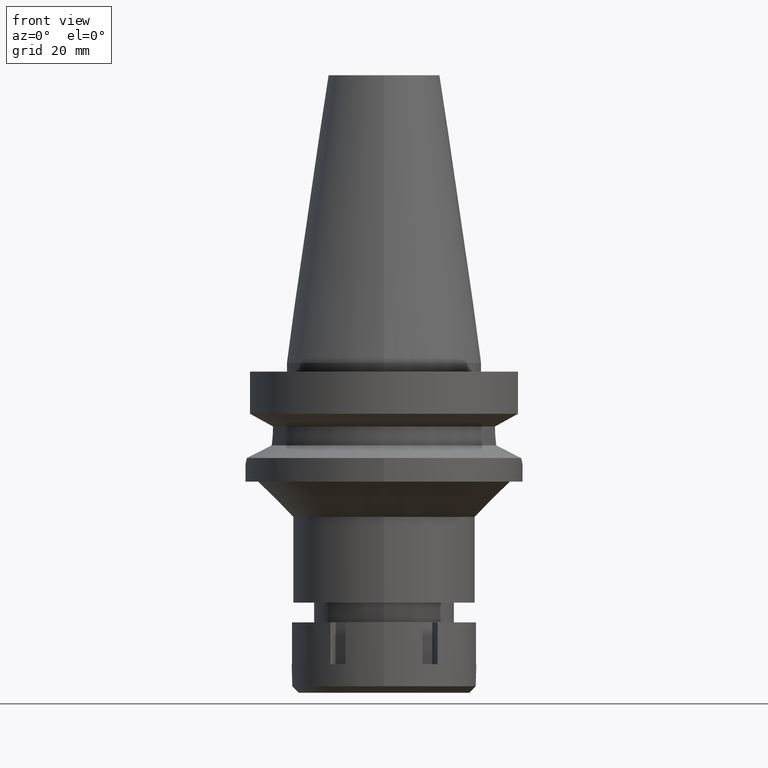
[diagram: clean part render]
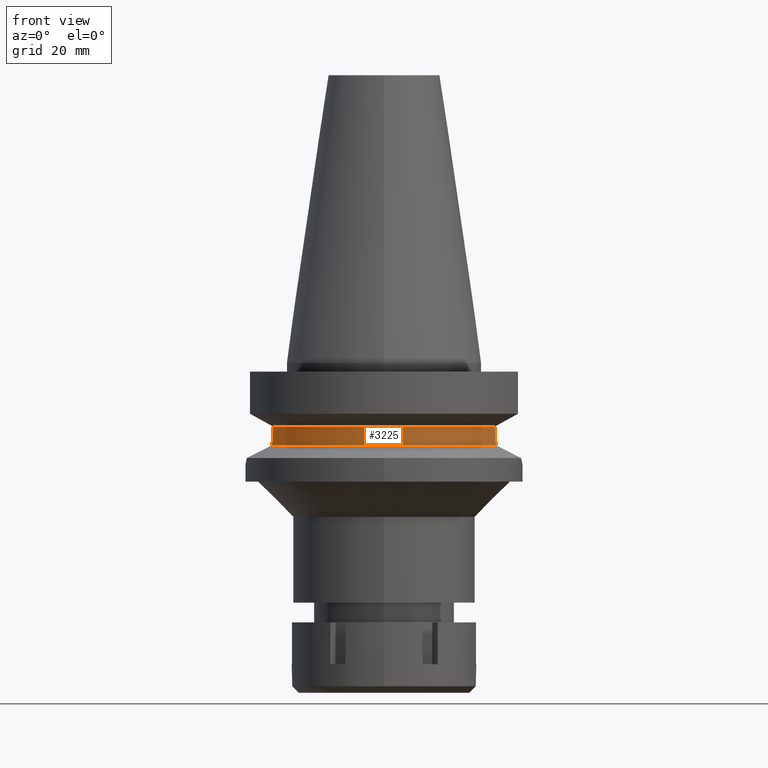
[diagram: same view with one face highlighted and labeled with its STEP entity id]
A machine part, front view. The second image highlights one B-rep face of the part: STEP entity #3225.
In plain terms, the highlighted cylindrical surface (partial cylindrical patch) has radius 26.5 mm, axis along (0, 0, -1).
Its self-contained STEP definition (entity closure, byte-faithful):
#19 = VERTEX_POINT ( 'NONE', #2022 ) ;
#30 = CARTESIAN_POINT ( 'NONE',  ( 25.28049748601338109, -7.946994850450307624, -16.24429618583970480 ) ) ;
#39 = CARTESIAN_POINT ( 'NONE',  ( -25.37572056917267460, -7.637749951107052127, -17.49806859187443564 ) ) ;
#62 = CARTESIAN_POINT ( 'NONE',  ( -25.32549268443488444, -7.802113524032651348, -16.93239579624749425 ) ) ;
#66 = EDGE_CURVE ( 'NONE', #2370, #299, #505, .T. ) ;
#105 = CARTESIAN_POINT ( 'NONE',  ( 25.31205300124014812, -7.845639649925911563, -16.75318914303528928 ) ) ;
#124 = CARTESIAN_POINT ( 'NONE',  ( 25.31651564365630946, -7.831204104243174591, -16.81418330715626652 ) ) ;
#125 = EDGE_CURVE ( 'NONE', #1655, #19, #2956, .T. ) ;
#183 = DIRECTION ( 'NONE',  ( 0.9527442516822307583, -0.3037735849057093818, 0.0000000000000000000 ) ) ;
#236 = DIRECTION ( 'NONE',  ( 1.005982706971015418E-06, 3.155128841044053748E-06, -0.9999999999945164975 ) ) ;
#299 = VERTEX_POINT ( 'NONE', #3288 ) ;
#319 = CARTESIAN_POINT ( 'NONE',  ( -25.24772266958000344, -8.050000000000000711, -14.94999999999999929 ) ) ;
#505 = B_SPLINE_CURVE_WITH_KNOTS ( 'NONE', 3,
 ( #1488, #2557, #931, #865, #39, #2212, #3318, #2770, #3044, #62, #634, #1688, #1718, #319 ),
 .UNSPECIFIED., .F., .F.,
 ( 4, 2, 2, 1, 1, 2, 2, 4 ),
 ( 0.0000000000000000000, 0.2500000000000173750, 0.3750000000000248135, 0.4375000000000286993, 0.4687500000000293099, 0.4843750000000282552, 0.5000000000000272005, 1.000000000000000000 ),
 .UNSPECIFIED. ) ;
#573 = FACE_OUTER_BOUND ( 'NONE', #1580, .T. ) ;
#594 = AXIS2_PLACEMENT_3D ( 'NONE', #2541, #2613, #183 ) ;
#634 = CARTESIAN_POINT ( 'NONE',  ( -25.32418278270155554, -7.806361859900751377, -16.91561764571308757 ) ) ;
#665 = CARTESIAN_POINT ( 'NONE',  ( 25.31953951064867780, -7.821415171330479588, -16.85483643462544734 ) ) ;
#672 = EDGE_CURVE ( 'NONE', #1655, #2153, #1392, .T. ) ;
#685 = CARTESIAN_POINT ( 'NONE',  ( 25.24772216885000020, -8.050001570481001067, -14.45224499875000035 ) ) ;
#695 = CARTESIAN_POINT ( 'NONE',  ( 25.53175183775000079, -7.097862220092999941, -18.74774300138999905 ) ) ;
#726 = ORIENTED_EDGE ( 'NONE', *, *, #672, .T. ) ;
#743 = DIRECTION ( 'NONE',  ( -0.9634623335000935818, -0.2678438573619981722, 0.0000000000000000000 ) ) ;
#779 = AXIS2_PLACEMENT_3D ( 'NONE', #2020, #1007, #743 ) ;
#832 = CARTESIAN_POINT ( 'NONE',  ( 25.24772266958000344, -8.050000000000000711, -14.94999999999999929 ) ) ;
#865 = CARTESIAN_POINT ( 'NONE',  ( -25.39163787691478191, -7.584845155549783335, -17.65187522139927623 ) ) ;
#910 = CARTESIAN_POINT ( 'NONE',  ( 25.30215227544257317, -7.877591542034611649, -16.61078271334942613 ) ) ;
#931 = CARTESIAN_POINT ( 'NONE',  ( -25.44392024329485480, -7.408267248949534256, -18.11703320962315544 ) ) ;
#1007 = DIRECTION ( 'NONE',  ( 0.0000000000000000000, 0.0000000000000000000, 1.000000000000000000 ) ) ;
#1110 = DIRECTION ( 'NONE',  ( 0.0000000000000000000, 0.0000000000000000000, -1.000000000000000000 ) ) ;
#1181 = EDGE_CURVE ( 'NONE', #19, #1637, #2752, .T. ) ;
#1361 = CYLINDRICAL_SURFACE ( 'NONE', #1948, 26.50000000000000000 ) ;
#1372 = ORIENTED_EDGE ( 'NONE', *, *, #1603, .F. ) ;
#1392 = CIRCLE ( 'NONE', #594, 26.50000000000000711 ) ;
#1488 = CARTESIAN_POINT ( 'NONE',  ( -25.53175183775000079, -7.097862220092999941, -18.74774300138999905 ) ) ;
#1580 = EDGE_LOOP ( 'NONE', ( #3088, #2897, #2991, #2412, #726, #1372 ) ) ;
#1603 = EDGE_CURVE ( 'NONE', #299, #2153, #2760, .T. ) ;
#1637 = VERTEX_POINT ( 'NONE', #2501 ) ;
#1642 = CARTESIAN_POINT ( 'NONE',  ( 25.24772266958000344, -8.050000000000000711, -14.45225699861000024 ) ) ;
#1655 = VERTEX_POINT ( 'NONE', #1642 ) ;
#1672 = DIRECTION ( 'NONE',  ( -2.949280787093910701E-06, 9.250021163603722903E-06, 0.9999999999528693673 ) ) ;
#1673 = CARTESIAN_POINT ( 'NONE',  ( 0.0000000000000000000, 2.106637423893000012E-14, 72.01999999999999602 ) ) ;
#1688 = CARTESIAN_POINT ( 'NONE',  ( -25.27268923712988880, -7.973297925131175745, -16.24528153449228896 ) ) ;
#1713 = CARTESIAN_POINT ( 'NONE',  ( 25.32121330090097544, -7.815992399058099949, -16.87694767647812455 ) ) ;
#1718 = CARTESIAN_POINT ( 'NONE',  ( -25.24772266958000344, -8.049999999999979394, -15.58995917009923993 ) ) ;
#1794 = CARTESIAN_POINT ( 'NONE',  ( 25.25396549175778560, -8.030898715995981263, -15.59375012089180323 ) ) ;
#1902 = VECTOR ( 'NONE', #1672, 1000.000000000000114 ) ;
#1916 = CARTESIAN_POINT ( 'NONE',  ( 25.24772266957999989, -8.050000000000000711, -15.26998665875503747 ) ) ;
#1948 = AXIS2_PLACEMENT_3D ( 'NONE', #1673, #1110, #2242 ) ;
#2020 = CARTESIAN_POINT ( 'NONE',  ( 0.0000000000000000000, 0.0000000000000000000, -18.74774300138999905 ) ) ;
#2022 = CARTESIAN_POINT ( 'NONE',  ( 25.24772266958000344, -8.050000000000000711, -14.94999999999999929 ) ) ;
#2033 = CARTESIAN_POINT ( 'NONE',  ( -25.53175183775000079, -7.097862220092999941, -18.74774300138999905 ) ) ;
#2042 = CARTESIAN_POINT ( 'NONE',  ( 25.29454383591340516, -7.902025199032715719, -16.48862119974110385 ) ) ;
#2153 = VERTEX_POINT ( 'NONE', #2231 ) ;
#2212 = CARTESIAN_POINT ( 'NONE',  ( -25.35410982913639444, -7.708872424743455909, -17.26994189693683879 ) ) ;
#2231 = CARTESIAN_POINT ( 'NONE',  ( -25.24772413746000055, -8.049995396191999220, -14.45229217772000041 ) ) ;
#2242 = DIRECTION ( 'NONE',  ( 0.0000000000000000000, -1.000000000000000000, 0.0000000000000000000 ) ) ;
#2306 = CIRCLE ( 'NONE', #779, 26.49999999999998224 ) ;
#2317 = EDGE_CURVE ( 'NONE', #2370, #1637, #2306, .T. ) ;
#2370 = VERTEX_POINT ( 'NONE', #2033 ) ;
#2412 = ORIENTED_EDGE ( 'NONE', *, *, #125, .F. ) ;
#2501 = CARTESIAN_POINT ( 'NONE',  ( 25.53175183775000079, -7.097862220092999941, -18.74774300138999905 ) ) ;
#2528 = CARTESIAN_POINT ( 'NONE',  ( 25.27269395829114274, -7.971776493381705464, -16.08141134904612102 ) ) ;
#2537 = CARTESIAN_POINT ( 'NONE',  ( 25.36818004971191343, -7.663723843875962061, -17.48832928984119306 ) ) ;
#2541 = CARTESIAN_POINT ( 'NONE',  ( 0.0000000000000000000, 1.065333950388000029E-14, -14.45225699861000024 ) ) ;
#2550 = CARTESIAN_POINT ( 'NONE',  ( 25.43788515039075193, -7.435510499717659094, -18.11668898673832828 ) ) ;
#2557 = CARTESIAN_POINT ( 'NONE',  ( -25.48481574508659619, -7.266696248285210658, -18.43219751299116638 ) ) ;
#2613 = DIRECTION ( 'NONE',  ( 0.0000000000000000000, 0.0000000000000000000, -1.000000000000000000 ) ) ;
#2752 = B_SPLINE_CURVE_WITH_KNOTS ( 'NONE', 3,
 ( #832, #1916, #1794, #2528, #30, #2042, #910, #105, #124, #665, #1713, #2537, #2550, #695 ),
 .UNSPECIFIED., .F., .F.,
 ( 4, 2, 2, 1, 1, 2, 2, 4 ),
 ( 0.0000000000000000000, 0.2499999999999993894, 0.3749999999999985567, 0.4374999999999980571, 0.4687499999999975575, 0.4843749999999971134, 0.4999999999999966138, 1.000000000000000000 ),
 .UNSPECIFIED. ) ;
#2760 = LINE ( 'NONE', #3029, #1902 ) ;
#2770 = CARTESIAN_POINT ( 'NONE',  ( -25.33291622355779182, -7.778016509996969141, -17.02546682202009976 ) ) ;
#2897 = ORIENTED_EDGE ( 'NONE', *, *, #2317, .T. ) ;
#2920 = VECTOR ( 'NONE', #236, 1000.000000000000114 ) ;
#2956 = LINE ( 'NONE', #685, #2920 ) ;
#2991 = ORIENTED_EDGE ( 'NONE', *, *, #1181, .F. ) ;
#3029 = CARTESIAN_POINT ( 'NONE',  ( -25.24772266958000344, -8.050000000000000711, -14.94999999999999929 ) ) ;
#3044 = CARTESIAN_POINT ( 'NONE',  ( -25.32843378481433305, -7.792569787454151076, -16.96958526498131548 ) ) ;
#3088 = ORIENTED_EDGE ( 'NONE', *, *, #66, .F. ) ;
#3225 = ADVANCED_FACE ( 'NONE', ( #573 ), #1361, .T. ) ;
#3288 = CARTESIAN_POINT ( 'NONE',  ( -25.24772266958000344, -8.050000000000000711, -14.94999999999999929 ) ) ;
#3318 = CARTESIAN_POINT ( 'NONE',  ( -25.34387076451247012, -7.742375422224786696, -17.15652271135520479 ) ) ;